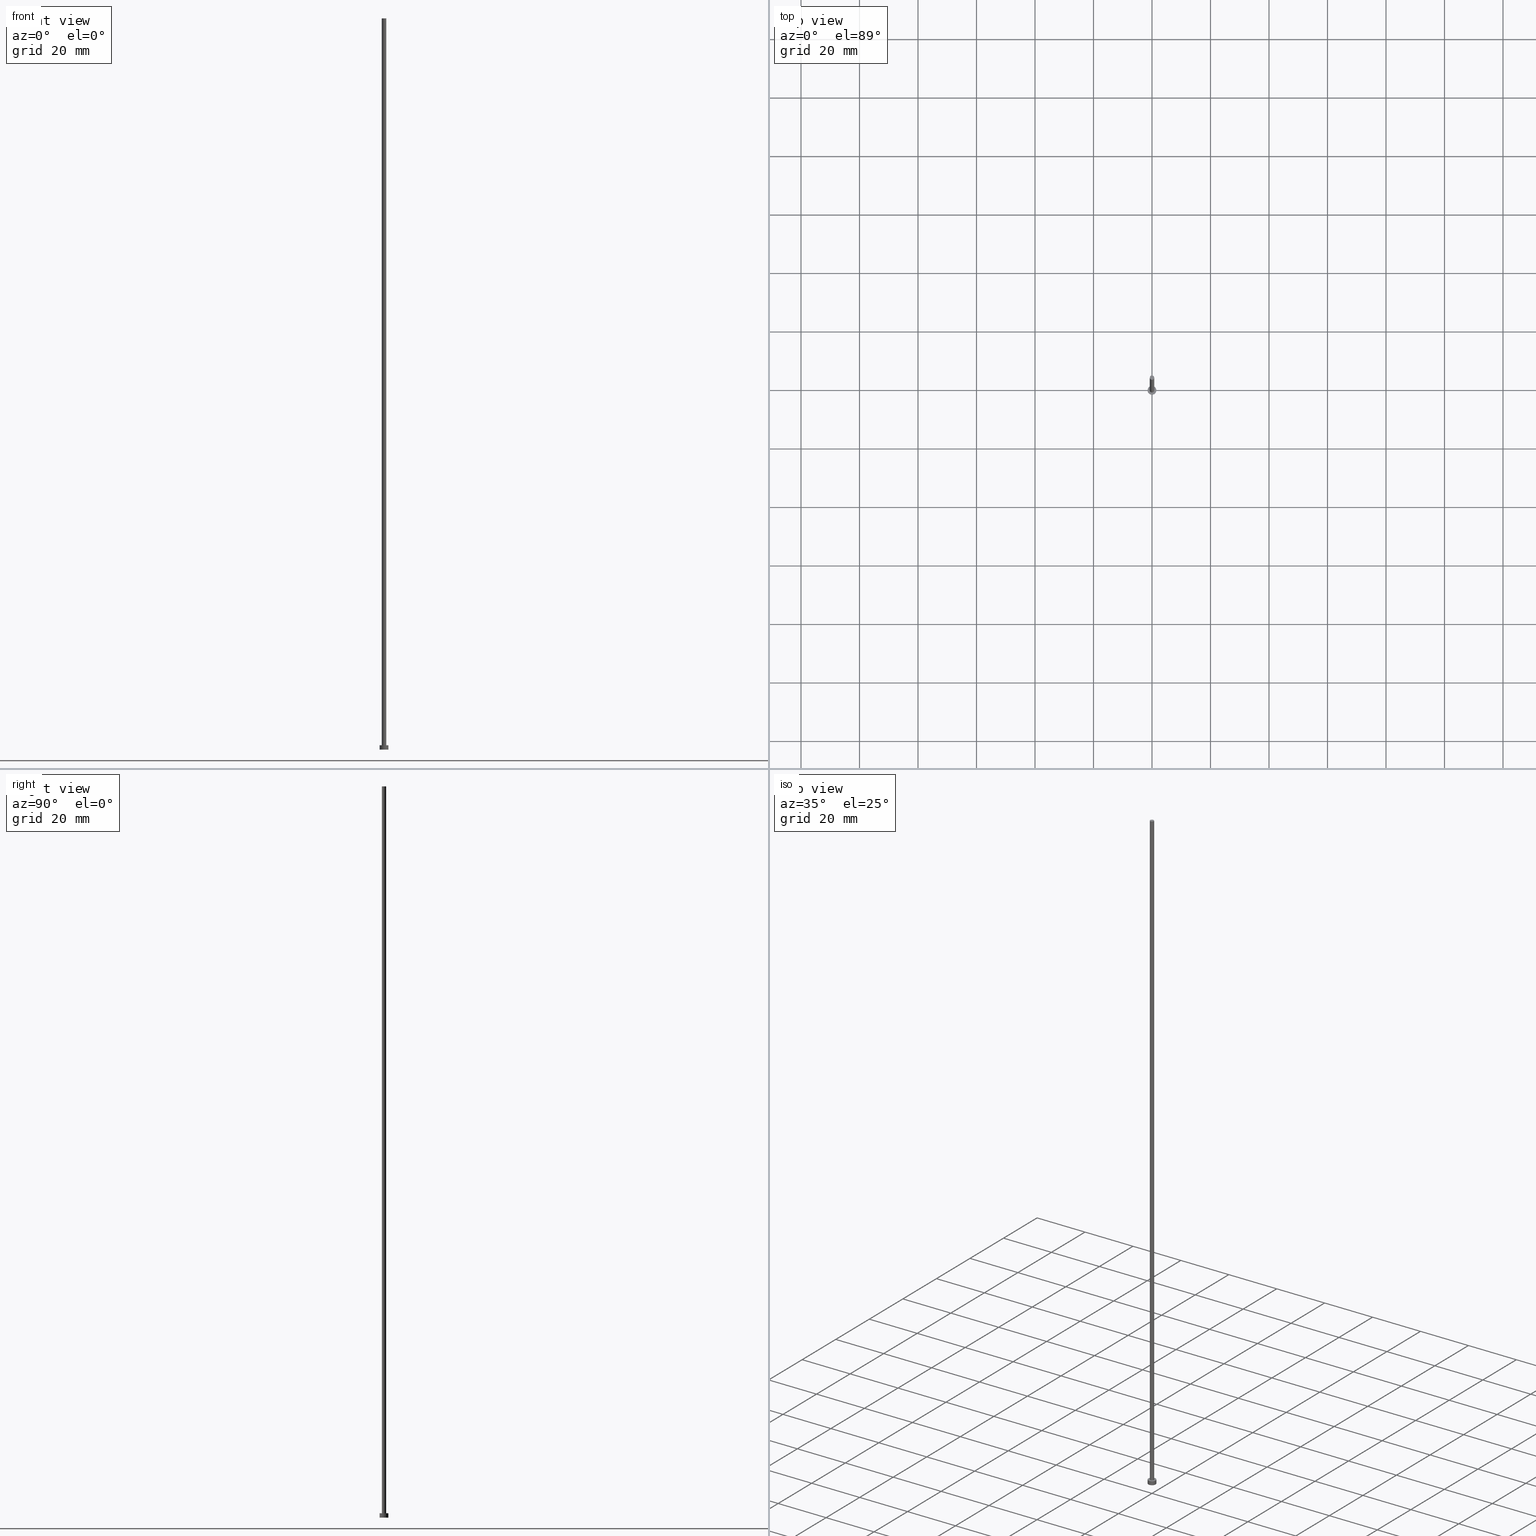
[diagram: canonical four-view strip — front | top / right | iso, engineering-drawing reading convention]
A machine part, canonical four-view strip (front | top / right | iso — engineering-drawing reading convention). The complete STEP part file that produces these views, byte-faithful:
ISO-10303-21;
HEADER;
FILE_DESCRIPTION (( 'STEP AP203' ),
    '1' );
FILE_NAME ('788f.STEP',
    '2026-02-06T12:33:07',
    ( '' ),
    ( '' ),
    'SwSTEP 2.0',
    'SolidWorks 2019',
    '' );
FILE_SCHEMA (( 'CONFIG_CONTROL_DESIGN' ));
ENDSEC;

DATA;
#1 = CC_DESIGN_DATE_AND_TIME_ASSIGNMENT ( #70, #171, ( #242 ) ) ;
#2 =( NAMED_UNIT ( * ) PLANE_ANGLE_UNIT ( ) SI_UNIT ( $, .RADIAN. ) );
#3 = ORIENTED_EDGE ( 'NONE', *, *, #250, .T. ) ;
#4 = APPROVAL_DATE_TIME ( #221, #26 ) ;
#5 = EDGE_CURVE ( 'NONE', #228, #143, #225, .T. ) ;
#6 = ORIENTED_EDGE ( 'NONE', *, *, #217, .T. ) ;
#7 = DIRECTION ( 'NONE',  ( 1.000000000000000000, 0.000000000000000000, 0.000000000000000000 ) ) ;
#8 = DIRECTION ( 'NONE',  ( 1.000000000000000000, 0.000000000000000000, 0.000000000000000000 ) ) ;
#9 = AXIS2_PLACEMENT_3D ( 'NONE', #31, #10, #113 ) ;
#10 = DIRECTION ( 'NONE',  ( 0.000000000000000000, 0.000000000000000000, 1.000000000000000000 ) ) ;
#11 = LOCAL_TIME ( 13, 33, 7.000000000000000000, #211 ) ;
#12 = DIRECTION ( 'NONE',  ( 1.000000000000000000, 0.000000000000000000, -0.000000000000000000 ) ) ;
#13 = PERSON_AND_ORGANIZATION ( #65, #105 ) ;
#14 = CARTESIAN_POINT ( 'NONE',  ( 0.000000000000000000, 0.000000000000000000, 0.000000000000000000 ) ) ;
#15 = VECTOR ( 'NONE', #116, 1000.000000000000000 ) ;
#16 = AXIS2_PLACEMENT_3D ( 'NONE', #161, #239, #179 ) ;
#17 = CARTESIAN_POINT ( 'NONE',  ( 0.7500000000000001110, 9.184850993605149670E-17, 1.500000000000000000 ) ) ;
#18 = ORIENTED_EDGE ( 'NONE', *, *, #95, .T. ) ;
#19 = CIRCLE ( 'NONE', #232, 1.500000000000000222 ) ;
#20 = CARTESIAN_POINT ( 'NONE',  ( -0.7500000000000001110, 0.000000000000000000, 250.0000000000000000 ) ) ;
#21 = DATE_AND_TIME ( #253, #148 ) ;
#22 = VECTOR ( 'NONE', #110, 1000.000000000000000 ) ;
#23 = FACE_OUTER_BOUND ( 'NONE', #29, .T. ) ;
#24 = DIRECTION ( 'NONE',  ( 1.000000000000000000, 0.000000000000000000, 0.000000000000000000 ) ) ;
#25 = EDGE_LOOP ( 'NONE', ( #44, #3, #166, #237 ) ) ;
#26 = APPROVAL ( #181, 'NEUR�EN�' ) ;
#27 = DIRECTION ( 'NONE',  ( -0.000000000000000000, -0.000000000000000000, -1.000000000000000000 ) ) ;
#28 = EDGE_CURVE ( 'NONE', #187, #97, #35, .T. ) ;
#29 = EDGE_LOOP ( 'NONE', ( #47, #219, #6, #131 ) ) ;
#30 = CALENDAR_DATE ( 2026, 6, 2 ) ;
#31 = CARTESIAN_POINT ( 'NONE',  ( 0.000000000000000000, 0.000000000000000000, 1.500000000000000000 ) ) ;
#32 = UNCERTAINTY_MEASURE_WITH_UNIT (LENGTH_MEASURE( 1.000000000000000082E-05 ), #180, 'distance_accuracy_value', 'NONE');
#33 = APPROVAL_ROLE ( '' ) ;
#34 = FACE_OUTER_BOUND ( 'NONE', #197, .T. ) ;
#35 = CIRCLE ( 'NONE', #182, 1.500000000000000222 ) ;
#36 = APPROVAL_PERSON_ORGANIZATION ( #45, #140, #98 ) ;
#37 = DIRECTION ( 'NONE',  ( 1.000000000000000000, 0.000000000000000000, 0.000000000000000000 ) ) ;
#38 = CC_DESIGN_PERSON_AND_ORGANIZATION_ASSIGNMENT ( #162, #240, ( #59 ) ) ;
#39 = DIRECTION ( 'NONE',  ( -0.000000000000000000, -0.000000000000000000, -1.000000000000000000 ) ) ;
#40 = PLANE ( 'NONE',  #151 ) ;
#41 =( GEOMETRIC_REPRESENTATION_CONTEXT ( 3 ) GLOBAL_UNCERTAINTY_ASSIGNED_CONTEXT ( ( #32 ) ) GLOBAL_UNIT_ASSIGNED_CONTEXT ( ( #180, #2, #241 ) ) REPRESENTATION_CONTEXT ( 'NONE', 'WORKASPACE' ) );
#42 = CARTESIAN_POINT ( 'NONE',  ( -1.500000000000000222, 0.000000000000000000, 0.000000000000000000 ) ) ;
#43 = CARTESIAN_POINT ( 'NONE',  ( 0.000000000000000000, 0.000000000000000000, 0.000000000000000000 ) ) ;
#44 = ORIENTED_EDGE ( 'NONE', *, *, #227, .F. ) ;
#45 = PERSON_AND_ORGANIZATION ( #65, #105 ) ;
#46 = PRODUCT_DEFINITION ( 'NEZN�M�', '', #59, #64 ) ;
#47 = ORIENTED_EDGE ( 'NONE', *, *, #122, .F. ) ;
#48 = DIRECTION ( 'NONE',  ( 1.000000000000000000, 0.000000000000000000, 0.000000000000000000 ) ) ;
#49 = ADVANCED_FACE ( 'NONE', ( #23 ), #191, .T. ) ;
#50 = LOCAL_TIME ( 13, 33, 7.000000000000000000, #108 ) ;
#51 = ADVANCED_BREP_SHAPE_REPRESENTATION ( '788f', ( #115, #165 ), #41 ) ;
#52 = DIRECTION ( 'NONE',  ( 0.000000000000000000, 0.000000000000000000, 1.000000000000000000 ) ) ;
#53 = DATE_AND_TIME ( #87, #50 ) ;
#54 = LINE ( 'NONE', #77, #22 ) ;
#55 = CLOSED_SHELL ( 'NONE', ( #223, #207, #49, #133, #144, #172, #146 ) ) ;
#56 = SECURITY_CLASSIFICATION_LEVEL ( 'unclassified' ) ;
#57 = FACE_OUTER_BOUND ( 'NONE', #206, .T. ) ;
#58 = DIRECTION ( 'NONE',  ( 0.000000000000000000, 0.000000000000000000, 1.000000000000000000 ) ) ;
#59 = PRODUCT_DEFINITION_FORMATION_WITH_SPECIFIED_SOURCE ( 'LIBOVOLN�', '', #243, .NOT_KNOWN. ) ;
#60 = CARTESIAN_POINT ( 'NONE',  ( -0.7500000000000001110, 0.000000000000000000, 1.500000000000000000 ) ) ;
#61 = APPROVAL_STATUS ( 'not_yet_approved' ) ;
#62 = ORIENTED_EDGE ( 'NONE', *, *, #250, .F. ) ;
#63 = APPROVAL_PERSON_ORGANIZATION ( #117, #26, #79 ) ;
#64 = DESIGN_CONTEXT ( 'detailed design', #216, 'design' ) ;
#65 = PERSON ( 'NEUR�EN�', 'NEUR�EN�', 'NEUR�EN�', ('NEUR�EN�'), ('NEUR�EN�'), ('NEUR�EN�') ) ;
#66 = DIRECTION ( 'NONE',  ( 1.000000000000000000, 0.000000000000000000, 0.000000000000000000 ) ) ;
#67 = ORIENTED_EDGE ( 'NONE', *, *, #5, .T. ) ;
#68 = VECTOR ( 'NONE', #112, 1000.000000000000000 ) ;
#69 = VERTEX_POINT ( 'NONE', #209 ) ;
#70 = DATE_AND_TIME ( #30, #11 ) ;
#71 = CARTESIAN_POINT ( 'NONE',  ( 0.000000000000000000, 0.000000000000000000, 250.0000000000000000 ) ) ;
#72 = DIRECTION ( 'NONE',  ( 0.000000000000000000, 0.000000000000000000, 1.000000000000000000 ) ) ;
#73 = COORDINATED_UNIVERSAL_TIME_OFFSET ( 1, 0, .AHEAD. ) ;
#74 = DIRECTION ( 'NONE',  ( 1.000000000000000000, 0.000000000000000000, -0.000000000000000000 ) ) ;
#75 = CC_DESIGN_APPROVAL ( #189, ( #242 ) ) ;
#76 = EDGE_CURVE ( 'NONE', #168, #100, #118, .T. ) ;
#77 = CARTESIAN_POINT ( 'NONE',  ( -1.500000000000000222, 0.000000000000000000, 1.500000000000000000 ) ) ;
#78 = VERTEX_POINT ( 'NONE', #80 ) ;
#79 = APPROVAL_ROLE ( '' ) ;
#80 = CARTESIAN_POINT ( 'NONE',  ( -0.7500000000000001110, 0.000000000000000000, 250.0000000000000000 ) ) ;
#81 = APPROVAL_DATE_TIME ( #120, #140 ) ;
#82 = CC_DESIGN_PERSON_AND_ORGANIZATION_ASSIGNMENT ( #83, #164, ( #46 ) ) ;
#83 = PERSON_AND_ORGANIZATION ( #65, #105 ) ;
#84 = CIRCLE ( 'NONE', #9, 0.7500000000000001110 ) ;
#85 = CARTESIAN_POINT ( 'NONE',  ( 0.000000000000000000, 0.000000000000000000, 1.500000000000000000 ) ) ;
#86 = EDGE_CURVE ( 'NONE', #143, #228, #19, .T. ) ;
#87 = CALENDAR_DATE ( 2026, 6, 2 ) ;
#88 = DIRECTION ( 'NONE',  ( 0.000000000000000000, 0.000000000000000000, 1.000000000000000000 ) ) ;
#89 = AXIS2_PLACEMENT_3D ( 'NONE', #153, #92, #213 ) ;
#90 = FACE_OUTER_BOUND ( 'NONE', #170, .T. ) ;
#91 = PRODUCT_RELATED_PRODUCT_CATEGORY ( 'detail', '', ( #243 ) ) ;
#92 = DIRECTION ( 'NONE',  ( -0.000000000000000000, -0.000000000000000000, -1.000000000000000000 ) ) ;
#93 = PERSON_AND_ORGANIZATION_ROLE ( 'design_owner' ) ;
#94 = CARTESIAN_POINT ( 'NONE',  ( 1.500000000000000222, 1.836970198721030181E-16, 1.500000000000000000 ) ) ;
#95 = EDGE_CURVE ( 'NONE', #78, #100, #247, .T. ) ;
#96 = MECHANICAL_CONTEXT ( 'NONE', #192, 'mechanical' ) ;
#97 = VERTEX_POINT ( 'NONE', #42 ) ;
#98 = APPROVAL_ROLE ( '' ) ;
#99 = LOCAL_TIME ( 13, 33, 7.000000000000000000, #73 ) ;
#100 = VERTEX_POINT ( 'NONE', #60 ) ;
#101 = PERSON_AND_ORGANIZATION_ROLE ( 'creator' ) ;
#102 = ORIENTED_EDGE ( 'NONE', *, *, #163, .F. ) ;
#103 = AXIS2_PLACEMENT_3D ( 'NONE', #85, #127, #8 ) ;
#104 = EDGE_LOOP ( 'NONE', ( #220, #208 ) ) ;
#105 = ORGANIZATION ( 'NEUR�EN�', 'NEUR�EN�', '' ) ;
#106 = APPROVAL_STATUS ( 'not_yet_approved' ) ;
#107 = FACE_OUTER_BOUND ( 'NONE', #157, .T. ) ;
#108 = COORDINATED_UNIVERSAL_TIME_OFFSET ( 1, 0, .AHEAD. ) ;
#109 = DIRECTION ( 'NONE',  ( 1.000000000000000000, 0.000000000000000000, -0.000000000000000000 ) ) ;
#110 = DIRECTION ( 'NONE',  ( -0.000000000000000000, -0.000000000000000000, -1.000000000000000000 ) ) ;
#111 = APPLICATION_PROTOCOL_DEFINITION ( 'international standard', 'config_control_design', 1994, #192 ) ;
#112 = DIRECTION ( 'NONE',  ( -0.000000000000000000, -0.000000000000000000, -1.000000000000000000 ) ) ;
#113 = DIRECTION ( 'NONE',  ( 1.000000000000000000, 0.000000000000000000, 0.000000000000000000 ) ) ;
#114 = CIRCLE ( 'NONE', #16, 0.7500000000000001110 ) ;
#115 = MANIFOLD_SOLID_BREP ( 'P�idat vysunut�m3', #55 ) ;
#116 = DIRECTION ( 'NONE',  ( -0.000000000000000000, -0.000000000000000000, -1.000000000000000000 ) ) ;
#117 = PERSON_AND_ORGANIZATION ( #65, #105 ) ;
#118 = CIRCLE ( 'NONE', #103, 0.7500000000000001110 ) ;
#119 = ORIENTED_EDGE ( 'NONE', *, *, #217, .F. ) ;
#120 = DATE_AND_TIME ( #184, #99 ) ;
#121 = AXIS2_PLACEMENT_3D ( 'NONE', #249, #58, #109 ) ;
#122 = EDGE_CURVE ( 'NONE', #228, #187, #183, .T. ) ;
#123 = EDGE_CURVE ( 'NONE', #78, #69, #114, .T. ) ;
#124 = AXIS2_PLACEMENT_3D ( 'NONE', #190, #149, #7 ) ;
#125 = LOCAL_TIME ( 13, 33, 7.000000000000000000, #159 ) ;
#126 = ORIENTED_EDGE ( 'NONE', *, *, #86, .T. ) ;
#127 = DIRECTION ( 'NONE',  ( 0.000000000000000000, 0.000000000000000000, 1.000000000000000000 ) ) ;
#128 = CC_DESIGN_PERSON_AND_ORGANIZATION_ASSIGNMENT ( #154, #101, ( #59 ) ) ;
#129 = VECTOR ( 'NONE', #150, 1000.000000000000000 ) ;
#130 = APPROVAL_PERSON_ORGANIZATION ( #229, #189, #33 ) ;
#131 = ORIENTED_EDGE ( 'NONE', *, *, #142, .T. ) ;
#132 = SHAPE_DEFINITION_REPRESENTATION ( #205, #51 ) ;
#133 = ADVANCED_FACE ( 'NONE', ( #236, #57 ), #40, .T. ) ;
#134 = DIRECTION ( 'NONE',  ( 1.000000000000000000, 0.000000000000000000, 0.000000000000000000 ) ) ;
#135 = CARTESIAN_POINT ( 'NONE',  ( 0.000000000000000000, 0.000000000000000000, 250.0000000000000000 ) ) ;
#136 = LINE ( 'NONE', #215, #68 ) ;
#137 = CYLINDRICAL_SURFACE ( 'NONE', #89, 0.7500000000000001110 ) ;
#138 = AXIS2_PLACEMENT_3D ( 'NONE', #71, #235, #37 ) ;
#139 = CIRCLE ( 'NONE', #158, 1.500000000000000222 ) ;
#140 = APPROVAL ( #61, 'NEUR�EN�' ) ;
#141 = CARTESIAN_POINT ( 'NONE',  ( 1.500000000000000222, 1.836970198721030181E-16, 1.500000000000000000 ) ) ;
#142 = EDGE_CURVE ( 'NONE', #97, #187, #139, .T. ) ;
#143 = VERTEX_POINT ( 'NONE', #251 ) ;
#144 = ADVANCED_FACE ( 'NONE', ( #254 ), #212, .F. ) ;
#145 = APPLICATION_PROTOCOL_DEFINITION ( 'international standard', 'config_control_design', 1994, #216 ) ;
#146 = ADVANCED_FACE ( 'NONE', ( #34 ), #231, .T. ) ;
#147 = EDGE_LOOP ( 'NONE', ( #102, #199 ) ) ;
#148 = LOCAL_TIME ( 13, 33, 7.000000000000000000, #178 ) ;
#149 = DIRECTION ( 'NONE',  ( 0.000000000000000000, 0.000000000000000000, 1.000000000000000000 ) ) ;
#150 = DIRECTION ( 'NONE',  ( -0.000000000000000000, -0.000000000000000000, -1.000000000000000000 ) ) ;
#151 = AXIS2_PLACEMENT_3D ( 'NONE', #196, #52, #74 ) ;
#152 = CYLINDRICAL_SURFACE ( 'NONE', #248, 0.7500000000000001110 ) ;
#153 = CARTESIAN_POINT ( 'NONE',  ( 0.000000000000000000, 0.000000000000000000, 250.0000000000000000 ) ) ;
#154 = PERSON_AND_ORGANIZATION ( #65, #105 ) ;
#155 = CARTESIAN_POINT ( 'NONE',  ( 0.000000000000000000, 0.000000000000000000, 1.500000000000000000 ) ) ;
#156 = CIRCLE ( 'NONE', #138, 0.7500000000000001110 ) ;
#157 = EDGE_LOOP ( 'NONE', ( #62, #204, #18, #167 ) ) ;
#158 = AXIS2_PLACEMENT_3D ( 'NONE', #14, #72, #134 ) ;
#159 = COORDINATED_UNIVERSAL_TIME_OFFSET ( 1, 0, .AHEAD. ) ;
#160 = ORIENTED_EDGE ( 'NONE', *, *, #5, .F. ) ;
#161 = CARTESIAN_POINT ( 'NONE',  ( 0.000000000000000000, 0.000000000000000000, 250.0000000000000000 ) ) ;
#162 = PERSON_AND_ORGANIZATION ( #65, #105 ) ;
#163 = EDGE_CURVE ( 'NONE', #100, #168, #84, .T. ) ;
#164 = PERSON_AND_ORGANIZATION_ROLE ( 'creator' ) ;
#165 = AXIS2_PLACEMENT_3D ( 'NONE', #43, #185, #24 ) ;
#166 = ORIENTED_EDGE ( 'NONE', *, *, #76, .T. ) ;
#167 = ORIENTED_EDGE ( 'NONE', *, *, #163, .T. ) ;
#168 = VERTEX_POINT ( 'NONE', #17 ) ;
#169 = APPROVAL_DATE_TIME ( #53, #189 ) ;
#170 = EDGE_LOOP ( 'NONE', ( #160, #244, #222, #119 ) ) ;
#171 = DATE_TIME_ROLE ( 'classification_date' ) ;
#172 = ADVANCED_FACE ( 'NONE', ( #107 ), #137, .T. ) ;
#173 = ORIENTED_EDGE ( 'NONE', *, *, #227, .T. ) ;
#174 = AXIS2_PLACEMENT_3D ( 'NONE', #194, #198, #12 ) ;
#175 = FACE_OUTER_BOUND ( 'NONE', #25, .T. ) ;
#176 = CARTESIAN_POINT ( 'NONE',  ( 1.500000000000000222, 1.836970198721030181E-16, 0.000000000000000000 ) ) ;
#177 = CC_DESIGN_DATE_AND_TIME_ASSIGNMENT ( #21, #202, ( #46 ) ) ;
#178 = COORDINATED_UNIVERSAL_TIME_OFFSET ( 1, 0, .AHEAD. ) ;
#179 = DIRECTION ( 'NONE',  ( 1.000000000000000000, 0.000000000000000000, 0.000000000000000000 ) ) ;
#180 =( LENGTH_UNIT ( ) NAMED_UNIT ( * ) SI_UNIT ( .MILLI., .METRE. ) );
#181 = APPROVAL_STATUS ( 'not_yet_approved' ) ;
#182 = AXIS2_PLACEMENT_3D ( 'NONE', #201, #238, #66 ) ;
#183 = LINE ( 'NONE', #141, #15 ) ;
#184 = CALENDAR_DATE ( 2026, 6, 2 ) ;
#185 = DIRECTION ( 'NONE',  ( 0.000000000000000000, 0.000000000000000000, 1.000000000000000000 ) ) ;
#186 = CC_DESIGN_PERSON_AND_ORGANIZATION_ASSIGNMENT ( #13, #93, ( #243 ) ) ;
#187 = VERTEX_POINT ( 'NONE', #176 ) ;
#188 = CARTESIAN_POINT ( 'NONE',  ( 0.000000000000000000, 0.000000000000000000, 1.500000000000000000 ) ) ;
#189 = APPROVAL ( #106, 'NEUR�EN�' ) ;
#190 = CARTESIAN_POINT ( 'NONE',  ( 0.000000000000000000, 0.000000000000000000, 1.500000000000000000 ) ) ;
#191 = CYLINDRICAL_SURFACE ( 'NONE', #252, 1.500000000000000222 ) ;
#192 = APPLICATION_CONTEXT ( 'configuration controlled 3d designs of mechanical parts and assemblies' ) ;
#193 = CYLINDRICAL_SURFACE ( 'NONE', #210, 1.500000000000000222 ) ;
#194 = CARTESIAN_POINT ( 'NONE',  ( 0.000000000000000000, 0.000000000000000000, 250.0000000000000000 ) ) ;
#195 = DIRECTION ( 'NONE',  ( -1.000000000000000000, 0.000000000000000000, 0.000000000000000000 ) ) ;
#196 = CARTESIAN_POINT ( 'NONE',  ( 0.000000000000000000, 0.000000000000000000, 1.500000000000000000 ) ) ;
#197 = EDGE_LOOP ( 'NONE', ( #224, #173 ) ) ;
#198 = DIRECTION ( 'NONE',  ( 0.000000000000000000, 0.000000000000000000, 1.000000000000000000 ) ) ;
#199 = ORIENTED_EDGE ( 'NONE', *, *, #76, .F. ) ;
#200 = CALENDAR_DATE ( 2026, 6, 2 ) ;
#201 = CARTESIAN_POINT ( 'NONE',  ( 0.000000000000000000, 0.000000000000000000, 0.000000000000000000 ) ) ;
#202 = DATE_TIME_ROLE ( 'creation_date' ) ;
#203 = CC_DESIGN_SECURITY_CLASSIFICATION ( #242, ( #59 ) ) ;
#204 = ORIENTED_EDGE ( 'NONE', *, *, #123, .F. ) ;
#205 = PRODUCT_DEFINITION_SHAPE ( 'NONE', 'NONE',  #46 ) ;
#206 = EDGE_LOOP ( 'NONE', ( #126, #67 ) ) ;
#207 = ADVANCED_FACE ( 'NONE', ( #90 ), #193, .T. ) ;
#208 = ORIENTED_EDGE ( 'NONE', *, *, #28, .F. ) ;
#209 = CARTESIAN_POINT ( 'NONE',  ( 0.7500000000000001110, 9.184850993605149670E-17, 250.0000000000000000 ) ) ;
#210 = AXIS2_PLACEMENT_3D ( 'NONE', #155, #39, #233 ) ;
#211 = COORDINATED_UNIVERSAL_TIME_OFFSET ( 1, 0, .AHEAD. ) ;
#212 = PLANE ( 'NONE',  #121 ) ;
#213 = DIRECTION ( 'NONE',  ( -1.000000000000000000, 0.000000000000000000, 0.000000000000000000 ) ) ;
#214 = PERSON_AND_ORGANIZATION_ROLE ( 'classification_officer' ) ;
#215 = CARTESIAN_POINT ( 'NONE',  ( 0.7500000000000001110, 9.184850993605149670E-17, 250.0000000000000000 ) ) ;
#216 = APPLICATION_CONTEXT ( 'configuration controlled 3d designs of mechanical parts and assemblies' ) ;
#217 = EDGE_CURVE ( 'NONE', #143, #97, #54, .T. ) ;
#218 = DIRECTION ( 'NONE',  ( -0.000000000000000000, -0.000000000000000000, -1.000000000000000000 ) ) ;
#219 = ORIENTED_EDGE ( 'NONE', *, *, #86, .F. ) ;
#220 = ORIENTED_EDGE ( 'NONE', *, *, #142, .F. ) ;
#221 = DATE_AND_TIME ( #200, #125 ) ;
#222 = ORIENTED_EDGE ( 'NONE', *, *, #28, .T. ) ;
#223 = ADVANCED_FACE ( 'NONE', ( #175 ), #152, .T. ) ;
#224 = ORIENTED_EDGE ( 'NONE', *, *, #123, .T. ) ;
#225 = CIRCLE ( 'NONE', #124, 1.500000000000000222 ) ;
#226 = DIRECTION ( 'NONE',  ( -1.000000000000000000, 0.000000000000000000, 0.000000000000000000 ) ) ;
#227 = EDGE_CURVE ( 'NONE', #69, #78, #156, .T. ) ;
#228 = VERTEX_POINT ( 'NONE', #94 ) ;
#229 = PERSON_AND_ORGANIZATION ( #65, #105 ) ;
#230 = CC_DESIGN_PERSON_AND_ORGANIZATION_ASSIGNMENT ( #234, #214, ( #242 ) ) ;
#231 = PLANE ( 'NONE',  #174 ) ;
#232 = AXIS2_PLACEMENT_3D ( 'NONE', #245, #88, #48 ) ;
#233 = DIRECTION ( 'NONE',  ( -1.000000000000000000, 0.000000000000000000, 0.000000000000000000 ) ) ;
#234 = PERSON_AND_ORGANIZATION ( #65, #105 ) ;
#235 = DIRECTION ( 'NONE',  ( 0.000000000000000000, 0.000000000000000000, 1.000000000000000000 ) ) ;
#236 = FACE_BOUND ( 'NONE', #147, .T. ) ;
#237 = ORIENTED_EDGE ( 'NONE', *, *, #95, .F. ) ;
#238 = DIRECTION ( 'NONE',  ( 0.000000000000000000, 0.000000000000000000, 1.000000000000000000 ) ) ;
#239 = DIRECTION ( 'NONE',  ( 0.000000000000000000, 0.000000000000000000, 1.000000000000000000 ) ) ;
#240 = PERSON_AND_ORGANIZATION_ROLE ( 'design_supplier' ) ;
#241 =( NAMED_UNIT ( * ) SI_UNIT ( $, .STERADIAN. ) SOLID_ANGLE_UNIT ( ) );
#242 = SECURITY_CLASSIFICATION ( '', '', #56 ) ;
#243 = PRODUCT ( '788f', '788f', '', ( #96 ) ) ;
#244 = ORIENTED_EDGE ( 'NONE', *, *, #122, .T. ) ;
#245 = CARTESIAN_POINT ( 'NONE',  ( 0.000000000000000000, 0.000000000000000000, 1.500000000000000000 ) ) ;
#246 = CC_DESIGN_APPROVAL ( #140, ( #59 ) ) ;
#247 = LINE ( 'NONE', #20, #129 ) ;
#248 = AXIS2_PLACEMENT_3D ( 'NONE', #135, #218, #195 ) ;
#249 = CARTESIAN_POINT ( 'NONE',  ( 0.000000000000000000, 0.000000000000000000, 0.000000000000000000 ) ) ;
#250 = EDGE_CURVE ( 'NONE', #69, #168, #136, .T. ) ;
#251 = CARTESIAN_POINT ( 'NONE',  ( -1.500000000000000222, 0.000000000000000000, 1.500000000000000000 ) ) ;
#252 = AXIS2_PLACEMENT_3D ( 'NONE', #188, #27, #226 ) ;
#253 = CALENDAR_DATE ( 2026, 6, 2 ) ;
#254 = FACE_OUTER_BOUND ( 'NONE', #104, .T. ) ;
#255 = CC_DESIGN_APPROVAL ( #26, ( #46 ) ) ;
ENDSEC;
END-ISO-10303-21;
